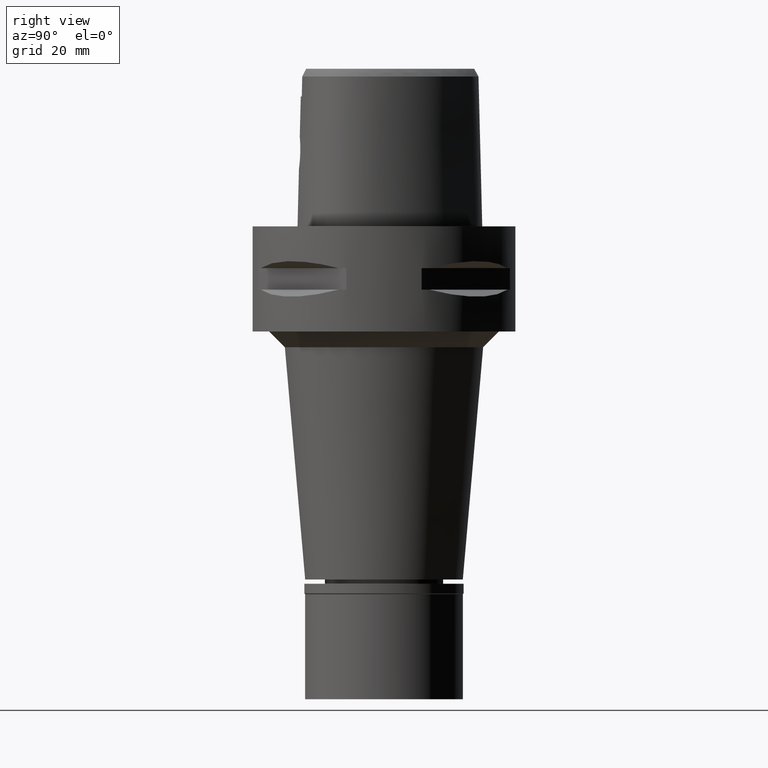
[diagram: clean part render]
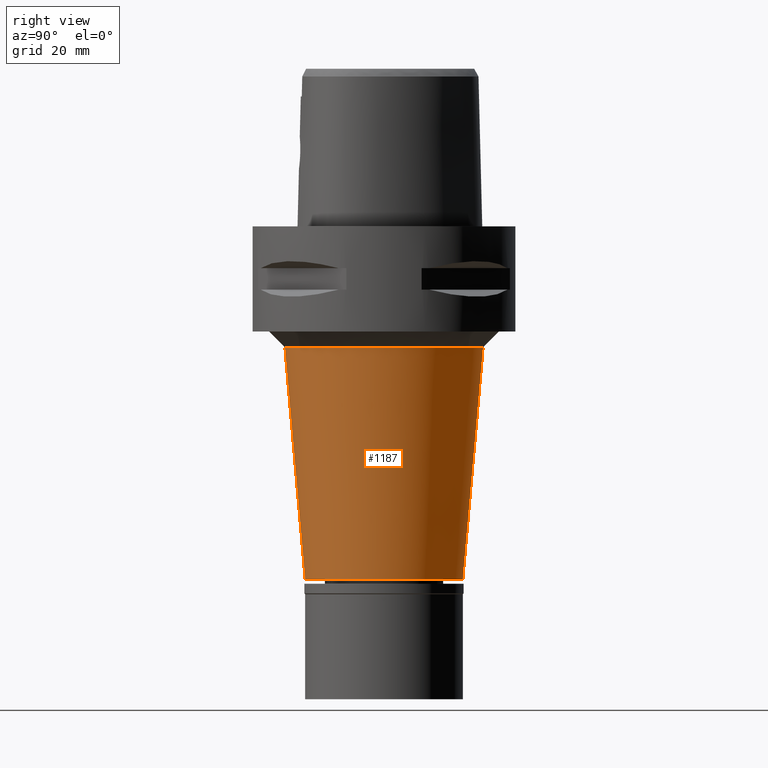
[diagram: same view with one face highlighted and labeled with its STEP entity id]
A machine part, right view. The second image highlights one B-rep face of the part: STEP entity #1187.
In plain terms, the highlighted conical surface has half-angle 5 deg.
Its self-contained STEP definition (entity closure, byte-faithful):
#33 = CARTESIAN_POINT ( 'NONE',  ( 0.0000000000000000000, -18.86699892784999832, -23.00000000000000000 ) ) ;
#71 = DIRECTION ( 'NONE',  ( 0.0000000000000000000, 0.08715574274772348862, -0.9961946980917397720 ) ) ;
#104 = CARTESIAN_POINT ( 'NONE',  ( 0.0000000000000000000, 0.0000000000000000000, -23.00000000000000000 ) ) ;
#186 = VERTEX_POINT ( 'NONE', #2402 ) ;
#210 = ORIENTED_EDGE ( 'NONE', *, *, #2484, .F. ) ;
#299 = VECTOR ( 'NONE', #3808, 1000.000000000000227 ) ;
#448 = DIRECTION ( 'NONE',  ( 0.0000000000000000000, 0.0000000000000000000, 1.000000000000000000 ) ) ;
#581 = CARTESIAN_POINT ( 'NONE',  ( 0.0000000000000000000, 15.00000000000000000, -67.20000000000000284 ) ) ;
#635 = EDGE_LOOP ( 'NONE', ( #1188, #1387, #1074, #210 ) ) ;
#845 = CARTESIAN_POINT ( 'NONE',  ( 0.0000000000000000000, 18.86699892784999832, -23.00000000000000000 ) ) ;
#1074 = ORIENTED_EDGE ( 'NONE', *, *, #4402, .T. ) ;
#1187 = ADVANCED_FACE ( 'NONE', ( #2339 ), #1388, .T. ) ;
#1188 = ORIENTED_EDGE ( 'NONE', *, *, #2724, .F. ) ;
#1263 = CARTESIAN_POINT ( 'NONE',  ( 0.0000000000000000000, 18.86699892784999832, -23.00000000000000000 ) ) ;
#1387 = ORIENTED_EDGE ( 'NONE', *, *, #3283, .T. ) ;
#1388 = CONICAL_SURFACE ( 'NONE', #1474, 16.93349946392000049, 0.08726646259969973729 ) ;
#1405 = VERTEX_POINT ( 'NONE', #581 ) ;
#1474 = AXIS2_PLACEMENT_3D ( 'NONE', #2628, #1507, #4109 ) ;
#1500 = AXIS2_PLACEMENT_3D ( 'NONE', #3801, #448, #4573 ) ;
#1507 = DIRECTION ( 'NONE',  ( 0.0000000000000000000, 0.0000000000000000000, 1.000000000000000000 ) ) ;
#1634 = CARTESIAN_POINT ( 'NONE',  ( 0.0000000000000000000, -18.86699892784999832, -23.00000000000000000 ) ) ;
#2257 = VERTEX_POINT ( 'NONE', #33 ) ;
#2285 = CIRCLE ( 'NONE', #1500, 15.00000000000000000 ) ;
#2339 = FACE_OUTER_BOUND ( 'NONE', #635, .T. ) ;
#2349 = LINE ( 'NONE', #845, #299 ) ;
#2402 = CARTESIAN_POINT ( 'NONE',  ( 0.0000000000000000000, -15.00000000000000000, -67.20000000000000284 ) ) ;
#2484 = EDGE_CURVE ( 'NONE', #2537, #1405, #2349, .T. ) ;
#2537 = VERTEX_POINT ( 'NONE', #1263 ) ;
#2628 = CARTESIAN_POINT ( 'NONE',  ( 0.0000000000000000000, 0.0000000000000000000, -45.10000000000000142 ) ) ;
#2650 = LINE ( 'NONE', #1634, #3284 ) ;
#2724 = EDGE_CURVE ( 'NONE', #2257, #2537, #3596, .T. ) ;
#3057 = DIRECTION ( 'NONE',  ( 0.0000000000000000000, 0.0000000000000000000, 1.000000000000000000 ) ) ;
#3283 = EDGE_CURVE ( 'NONE', #2257, #186, #2650, .T. ) ;
#3284 = VECTOR ( 'NONE', #71, 1000.000000000000227 ) ;
#3360 = AXIS2_PLACEMENT_3D ( 'NONE', #104, #3057, #4647 ) ;
#3596 = CIRCLE ( 'NONE', #3360, 18.86699892783999744 ) ;
#3801 = CARTESIAN_POINT ( 'NONE',  ( 0.0000000000000000000, 0.0000000000000000000, -67.20000000000000284 ) ) ;
#3808 = DIRECTION ( 'NONE',  ( 0.0000000000000000000, -0.08715574274772348862, -0.9961946980917397720 ) ) ;
#4109 = DIRECTION ( 'NONE',  ( 0.0000000000000000000, 1.000000000000000000, 0.0000000000000000000 ) ) ;
#4402 = EDGE_CURVE ( 'NONE', #186, #1405, #2285, .T. ) ;
#4573 = DIRECTION ( 'NONE',  ( 0.0000000000000000000, -1.000000000000000000, 0.0000000000000000000 ) ) ;
#4647 = DIRECTION ( 'NONE',  ( 0.0000000000000000000, -1.000000000000000000, 0.0000000000000000000 ) ) ;